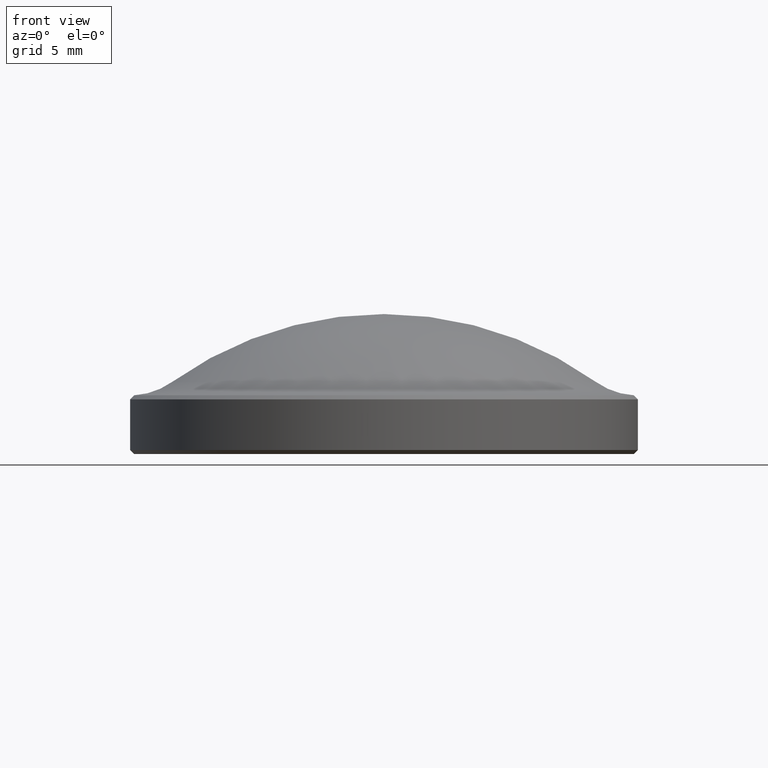
[diagram: clean part render]
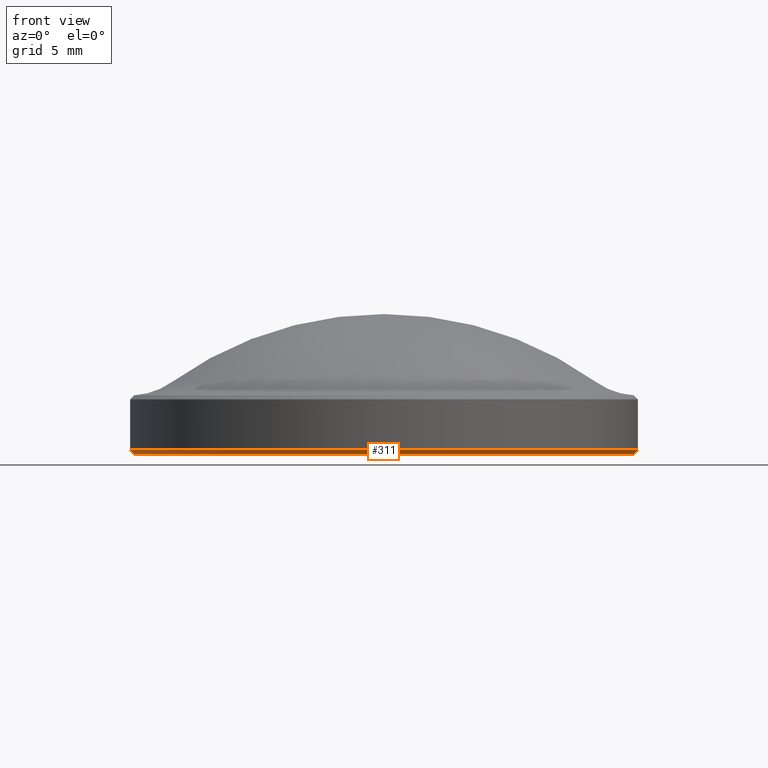
[diagram: same view with one face highlighted and labeled with its STEP entity id]
A machine part, front view. The second image highlights one B-rep face of the part: STEP entity #311.
In plain terms, the highlighted conical surface has half-angle 45 deg.
Its self-contained STEP definition (entity closure, byte-faithful):
#16 = DIRECTION ( 'NONE',  ( 1.000000000000000000, 0.000000000000000000, 0.000000000000000000 ) ) ;
#18 = EDGE_CURVE ( 'NONE', #314, #254, #304, .T. ) ;
#22 = VERTEX_POINT ( 'NONE', #163 ) ;
#32 = EDGE_LOOP ( 'NONE', ( #143, #39, #292, #53 ) ) ;
#39 = ORIENTED_EDGE ( 'NONE', *, *, #198, .F. ) ;
#45 = AXIS2_PLACEMENT_3D ( 'NONE', #182, #262, #101 ) ;
#46 = DIRECTION ( 'NONE',  ( -0.000000000000000000, -0.000000000000000000, -1.000000000000000000 ) ) ;
#47 = EDGE_CURVE ( 'NONE', #22, #254, #295, .T. ) ;
#53 = ORIENTED_EDGE ( 'NONE', *, *, #18, .F. ) ;
#70 = CARTESIAN_POINT ( 'NONE',  ( 0.000000000000000000, 0.000000000000000000, 0.000000000000000000 ) ) ;
#75 = CARTESIAN_POINT ( 'NONE',  ( 12.69999999999999929, 1.555301434917138038E-15, 0.2000000000000196065 ) ) ;
#89 = CARTESIAN_POINT ( 'NONE',  ( 12.69999999999999929, 0.000000000000000000, 0.2000000000000196065 ) ) ;
#101 = DIRECTION ( 'NONE',  ( 1.000000000000000000, 0.000000000000000000, 0.000000000000000000 ) ) ;
#109 = FACE_OUTER_BOUND ( 'NONE', #32, .T. ) ;
#129 = AXIS2_PLACEMENT_3D ( 'NONE', #70, #46, #16 ) ;
#133 = CARTESIAN_POINT ( 'NONE',  ( -12.69999999999999929, 1.555301434917138433E-15, 0.2000000000000196065 ) ) ;
#135 = AXIS2_PLACEMENT_3D ( 'NONE', #187, #229, #232 ) ;
#143 = ORIENTED_EDGE ( 'NONE', *, *, #276, .F. ) ;
#157 = LINE ( 'NONE', #133, #297 ) ;
#163 = CARTESIAN_POINT ( 'NONE',  ( 12.49999999999998224, 0.000000000000000000, 0.000000000000000000 ) ) ;
#182 = CARTESIAN_POINT ( 'NONE',  ( 0.000000000000000000, 0.000000000000000000, 0.2000000000000196065 ) ) ;
#187 = CARTESIAN_POINT ( 'NONE',  ( 0.000000000000000000, 0.000000000000000000, 0.2000000000000196065 ) ) ;
#188 = CONICAL_SURFACE ( 'NONE', #45, 12.69999999999999929, 0.7853981633974439491 ) ;
#198 = EDGE_CURVE ( 'NONE', #22, #265, #283, .T. ) ;
#219 = DIRECTION ( 'NONE',  ( -0.7071067811865444641, 8.659560562354895880E-17, 0.7071067811865505703 ) ) ;
#229 = DIRECTION ( 'NONE',  ( -0.000000000000000000, -0.000000000000000000, 1.000000000000000000 ) ) ;
#231 = DIRECTION ( 'NONE',  ( 0.7071067811865444641, 0.000000000000000000, 0.7071067811865505703 ) ) ;
#232 = DIRECTION ( 'NONE',  ( 1.000000000000000000, 0.000000000000000000, 0.000000000000000000 ) ) ;
#242 = CARTESIAN_POINT ( 'NONE',  ( -12.49999999999998224, 1.543054966925663892E-15, 0.000000000000000000 ) ) ;
#254 = VERTEX_POINT ( 'NONE', #75 ) ;
#262 = DIRECTION ( 'NONE',  ( -0.000000000000000000, -0.000000000000000000, 1.000000000000000000 ) ) ;
#265 = VERTEX_POINT ( 'NONE', #242 ) ;
#276 = EDGE_CURVE ( 'NONE', #265, #314, #157, .T. ) ;
#283 = CIRCLE ( 'NONE', #129, 12.49999999999998224 ) ;
#287 = CARTESIAN_POINT ( 'NONE',  ( -12.69999999999999929, 0.000000000000000000, 0.2000000000000196065 ) ) ;
#292 = ORIENTED_EDGE ( 'NONE', *, *, #47, .T. ) ;
#295 = LINE ( 'NONE', #89, #298 ) ;
#297 = VECTOR ( 'NONE', #219, 1000.000000000000227 ) ;
#298 = VECTOR ( 'NONE', #231, 1000.000000000000227 ) ;
#304 = CIRCLE ( 'NONE', #135, 12.69999999999999929 ) ;
#311 = ADVANCED_FACE ( 'NONE', ( #109 ), #188, .T. ) ;
#314 = VERTEX_POINT ( 'NONE', #287 ) ;